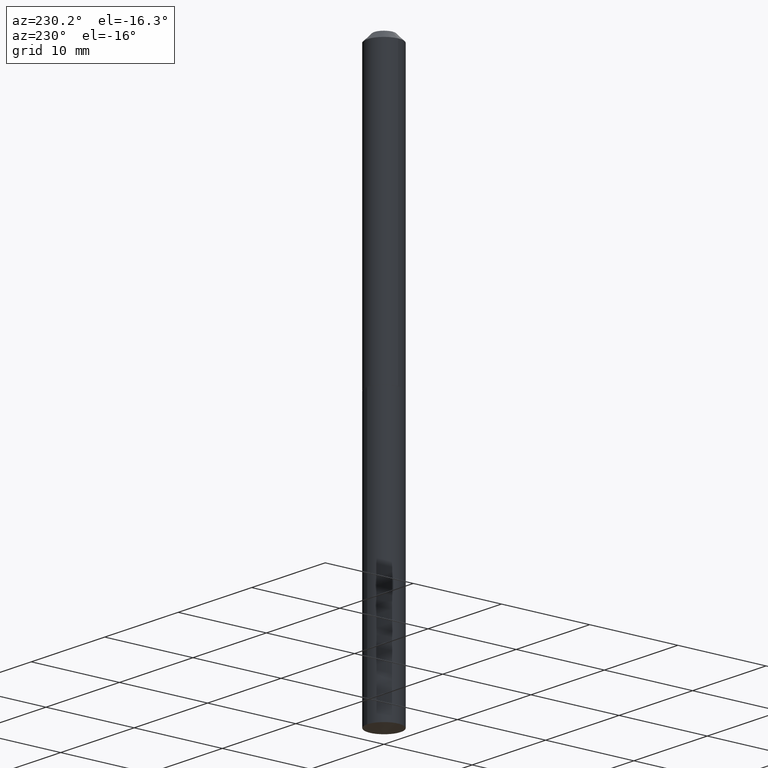
[diagram: clean part render]
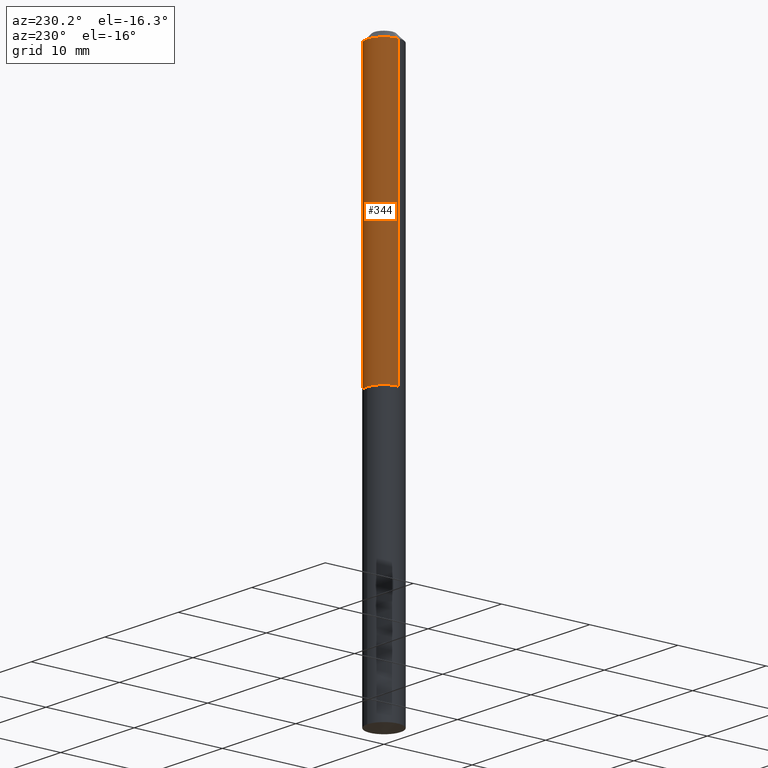
[diagram: same view with one face highlighted and labeled with its STEP entity id]
A machine part, auxiliary view. The second image highlights one B-rep face of the part: STEP entity #344.
In plain terms, the highlighted cylindrical surface (edge-blend (fillet) strip) has radius 1.8987 mm, axis along (-0, 0, 1).
Its self-contained STEP definition (entity closure, byte-faithful):
#5 = EDGE_CURVE ( 'NONE', #209, #138, #223, .T. ) ;
#9 = AXIS2_PLACEMENT_3D ( 'NONE', #124, #358, #148 ) ;
#20 = CYLINDRICAL_SURFACE ( 'NONE', #128, 0.07475000000000006639 ) ;
#34 = CARTESIAN_POINT ( 'NONE',  ( -0.07475000000000014966, -3.917016530705492240E-15, -1.274000000000000021 ) ) ;
#74 = EDGE_CURVE ( 'NONE', #191, #138, #86, .T. ) ;
#79 = EDGE_LOOP ( 'NONE', ( #136, #251, #84, #115 ) ) ;
#82 = DIRECTION ( 'NONE',  ( -2.445468806185136877E-29, 3.491481338843145188E-15, 1.000000000000000000 ) ) ;
#83 = CARTESIAN_POINT ( 'NONE',  ( 0.000000000000000000, 0.000000000000000000, 0.000000000000000000 ) ) ;
#84 = ORIENTED_EDGE ( 'NONE', *, *, #74, .F. ) ;
#86 = CIRCLE ( 'NONE', #245, 0.07474999999999999700 ) ;
#102 = CARTESIAN_POINT ( 'NONE',  ( 0.07474999999999999700, -6.310852519958974032E-16, -0.03125000000000019429 ) ) ;
#105 = CARTESIAN_POINT ( 'NONE',  ( 0.07475000000000006639, -5.219764601570489928E-16, 3.644942139907465396E-30 ) ) ;
#110 = EDGE_CURVE ( 'NONE', #288, #191, #246, .T. ) ;
#115 = ORIENTED_EDGE ( 'NONE', *, *, #110, .F. ) ;
#122 = DIRECTION ( 'NONE',  ( 1.000000000000000000, -6.982962677686266711E-15, 0.000000000000000000 ) ) ;
#124 = CARTESIAN_POINT ( 'NONE',  ( 3.115527259079864567E-29, -4.448147225686167798E-15, -1.274000000000000021 ) ) ;
#128 = AXIS2_PLACEMENT_3D ( 'NONE', #83, #219, #199 ) ;
#136 = ORIENTED_EDGE ( 'NONE', *, *, #158, .T. ) ;
#138 = VERTEX_POINT ( 'NONE', #156 ) ;
#148 = DIRECTION ( 'NONE',  ( 1.000000000000000000, -6.982962677686270655E-15, 0.000000000000000000 ) ) ;
#156 = CARTESIAN_POINT ( 'NONE',  ( -0.07474999999999999700, -1.747497313781831905E-15, -0.03125000000000019429 ) ) ;
#158 = EDGE_CURVE ( 'NONE', #288, #209, #296, .T. ) ;
#176 = DIRECTION ( 'NONE',  ( -2.445468806185136597E-29, 3.491481338843145583E-15, 1.000000000000000000 ) ) ;
#189 = DIRECTION ( 'NONE',  ( -2.445468806185136877E-29, 3.491481338843145188E-15, 1.000000000000000000 ) ) ;
#191 = VERTEX_POINT ( 'NONE', #102 ) ;
#199 = DIRECTION ( 'NONE',  ( 1.000000000000000000, -6.982962677686268288E-15, 4.876176775795935793E-29 ) ) ;
#209 = VERTEX_POINT ( 'NONE', #34 ) ;
#219 = DIRECTION ( 'NONE',  ( -2.445468806185136597E-29, 3.491481338843145583E-15, 1.000000000000000000 ) ) ;
#223 = LINE ( 'NONE', #350, #315 ) ;
#237 = CARTESIAN_POINT ( 'NONE',  ( 7.642090019328599159E-31, -1.091087918388489774E-16, -0.03125000000000019429 ) ) ;
#245 = AXIS2_PLACEMENT_3D ( 'NONE', #237, #176, #122 ) ;
#246 = LINE ( 'NONE', #105, #343 ) ;
#251 = ORIENTED_EDGE ( 'NONE', *, *, #5, .T. ) ;
#288 = VERTEX_POINT ( 'NONE', #341 ) ;
#296 = CIRCLE ( 'NONE', #9, 0.07475000000000014966 ) ;
#314 = FACE_OUTER_BOUND ( 'NONE', #79, .T. ) ;
#315 = VECTOR ( 'NONE', #82, 39.37007874015748143 ) ;
#341 = CARTESIAN_POINT ( 'NONE',  ( 0.07475000000000014966, -4.970123685843217876E-15, -1.274000000000000021 ) ) ;
#343 = VECTOR ( 'NONE', #189, 39.37007874015748143 ) ;
#344 = ADVANCED_FACE ( 'NONE', ( #314 ), #20, .T. ) ;
#350 = CARTESIAN_POINT ( 'NONE',  ( -0.07475000000000006639, 5.311306949806753607E-16, -3.676903979965545675E-30 ) ) ;
#358 = DIRECTION ( 'NONE',  ( -2.445468806185136597E-29, 3.491481338843145583E-15, 1.000000000000000000 ) ) ;